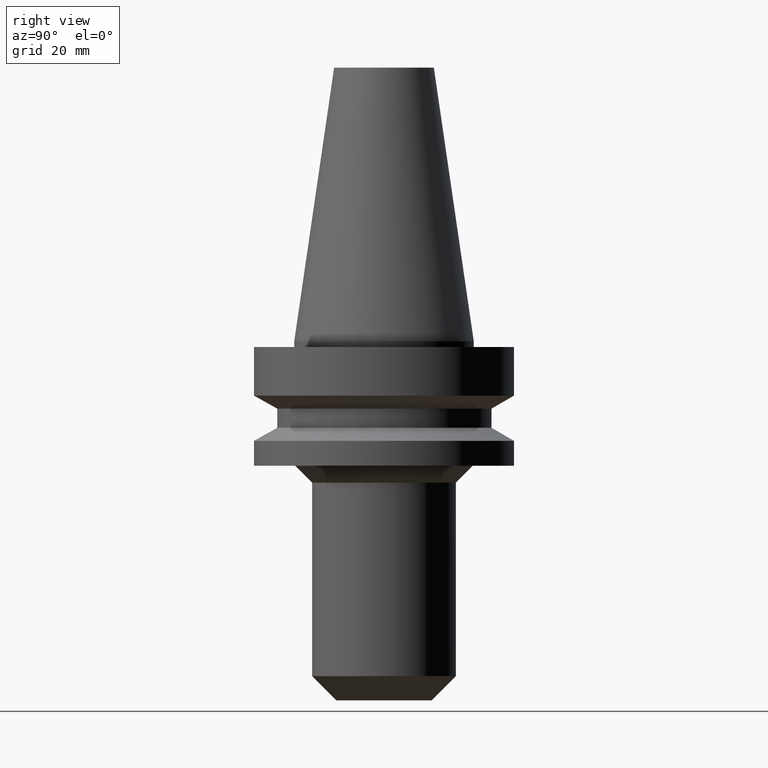
[diagram: clean part render]
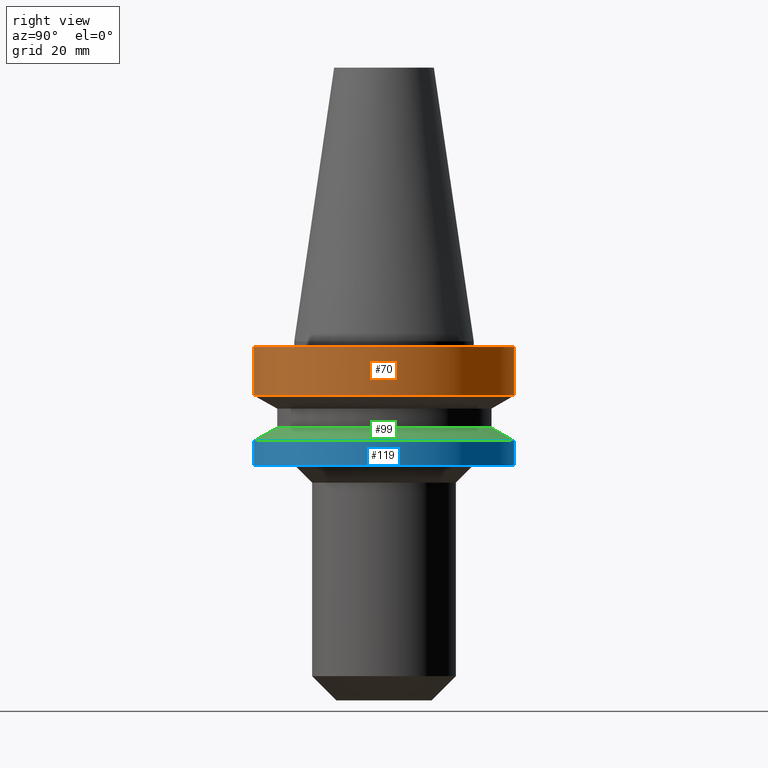
[diagram: same view with three faces highlighted in distinct colors, each labeled with its STEP entity id]
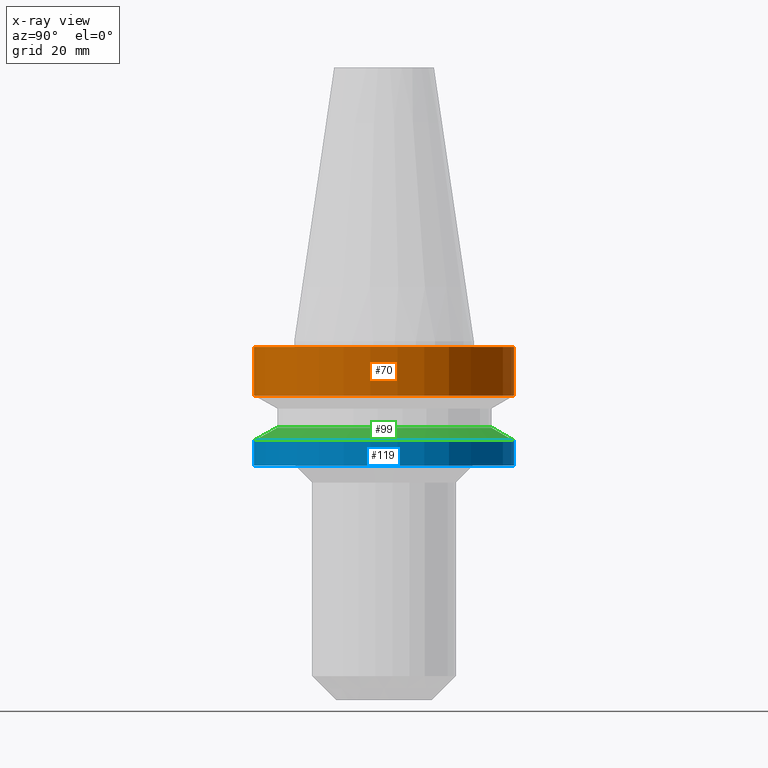
[diagram: x-ray of the same camera — body ghosted, the three highlighted faces saturated]
A machine part, right view with three faces highlighted in distinct colors.
The next image is the same camera in x-ray (body ghosted, the three faces saturated) — at least one of them is partly hidden behind the body in this view.
Their STEP definitions:

[orange] entity #70 — the highlighted cylindrical surface (bore or boss wall) has radius 23 mm, axis along (0, 0, -1).
#63=EDGE_CURVE('Unnamed[1]',#154,#154,#155,.T.);
#70=ADVANCED_FACE('Unnamed[1]',(#164,#165),#166,.T.);
#121=EDGE_CURVE('Unnamed[1]',#246,#246,#247,.T.);
#154=VERTEX_POINT('',#274);
#155=CIRCLE('',#275,23.0);
#164=FACE_BOUND('',#287,.T.);
#165=FACE_BOUND('',#288,.T.);
#166=CYLINDRICAL_SURFACE('',#289,23.0);
#246=VERTEX_POINT('',#389);
#247=CIRCLE('',#390,23.0);
#274=CARTESIAN_POINT('',(5.87830463590729E-016,23.0,-9.59999999999999));
#275=AXIS2_PLACEMENT_3D('',#407,#408,#409);
#287=EDGE_LOOP('',(#417));
#288=EDGE_LOOP('',(#418));
#289=AXIS2_PLACEMENT_3D('',#419,#420,#421);
#389=CARTESIAN_POINT('',(6.12323399573674E-017,23.0,-0.999999999999997));
#390=AXIS2_PLACEMENT_3D('',#511,#512,#513);
#407=CARTESIAN_POINT('',(5.87830463590729E-016,1.17566092718146E-015,-9.59999999999999));
#408=DIRECTION('',(6.12323399573677E-017,1.22464679914735E-016,-1.0));
#409=DIRECTION('',(-1.23259516440783E-032,1.0,1.22464679914735E-016));
#417=ORIENTED_EDGE('',*,*,#63,.F.);
#418=ORIENTED_EDGE('',*,*,#121,.T.);
#419=CARTESIAN_POINT('',(3.24531401774048E-016,6.49062803548097E-016,-5.3));
#420=DIRECTION('',(6.12323399573677E-017,1.22464679914735E-016,-1.0));
#421=DIRECTION('',(-1.23259516440783E-032,1.0,1.22464679914735E-016));
#511=CARTESIAN_POINT('',(6.12323399573677E-017,1.22464679914735E-016,-1.0));
#512=DIRECTION('',(6.12323399573677E-017,1.22464679914735E-016,-1.0));
#513=DIRECTION('',(-1.23259516440783E-032,1.0,1.22464679914735E-016));

[blue] entity #119 — the highlighted cylindrical surface (bore or boss wall) has radius 23 mm, axis along (0, 0, -1).
#77=EDGE_CURVE('Unnamed[1]',#175,#175,#176,.T.);
#113=EDGE_CURVE('Unnamed[1]',#233,#233,#234,.T.);
#119=ADVANCED_FACE('Unnamed[1]',(#242,#243),#244,.T.);
#175=VERTEX_POINT('',#301);
#176=CIRCLE('',#302,23.0);
#233=VERTEX_POINT('',#373);
#234=CIRCLE('',#374,23.0);
#242=FACE_BOUND('',#384,.T.);
#243=FACE_BOUND('',#385,.T.);
#244=CYLINDRICAL_SURFACE('',#386,23.0);
#301=CARTESIAN_POINT('',(1.34711147906209E-015,23.0,-22.0));
#302=AXIS2_PLACEMENT_3D('',#430,#431,#432);
#373=CARTESIAN_POINT('',(1.07768918324967E-015,23.0,-17.6));
#374=AXIS2_PLACEMENT_3D('',#496,#497,#498);
#384=EDGE_LOOP('',(#506));
#385=EDGE_LOOP('',(#507));
#386=AXIS2_PLACEMENT_3D('',#508,#509,#510);
#430=CARTESIAN_POINT('',(1.34711147906209E-015,2.69422295812418E-015,-22.0));
#431=DIRECTION('',(6.12323399573677E-017,1.22464679914735E-016,-1.0));
#432=DIRECTION('',(-1.23259516440783E-032,1.0,1.22464679914735E-016));
#496=CARTESIAN_POINT('',(1.07768918324967E-015,2.15537836649934E-015,-17.6));
#497=DIRECTION('',(6.12323399573677E-017,1.22464679914735E-016,-1.0));
#498=DIRECTION('',(-1.23259516440783E-032,1.0,1.22464679914735E-016));
#506=ORIENTED_EDGE('',*,*,#77,.F.);
#507=ORIENTED_EDGE('',*,*,#113,.T.);
#508=CARTESIAN_POINT('',(1.21240033115588E-015,2.42480066231176E-015,-19.8));
#509=DIRECTION('',(6.12323399573677E-017,1.22464679914735E-016,-1.0));
#510=DIRECTION('',(-1.23259516440783E-032,1.0,1.22464679914735E-016));

[green] entity #99 — the highlighted conical surface has half-angle 60 deg.
#72=EDGE_CURVE('Unnamed[1]',#168,#168,#169,.T.);
#99=ADVANCED_FACE('Unnamed[1]',(#209,#210),#211,.T.);
#113=EDGE_CURVE('Unnamed[1]',#233,#233,#234,.T.);
#168=VERTEX_POINT('',#292);
#169=CIRCLE('',#293,19.0);
#209=FACE_BOUND('',#344,.T.);
#210=FACE_BOUND('',#345,.T.);
#211=CONICAL_SURFACE('',#346,21.0,1.04719755058882);
#233=VERTEX_POINT('',#373);
#234=CIRCLE('',#374,23.0);
#292=CARTESIAN_POINT('',(9.36279151221199E-016,19.0,-15.29059892));
#293=AXIS2_PLACEMENT_3D('',#422,#423,#424);
#344=EDGE_LOOP('',(#467));
#345=EDGE_LOOP('',(#468));
#346=AXIS2_PLACEMENT_3D('',#469,#470,#471);
#373=CARTESIAN_POINT('',(1.07768918324967E-015,23.0,-17.6));
#374=AXIS2_PLACEMENT_3D('',#496,#497,#498);
#422=CARTESIAN_POINT('',(9.36279151221199E-016,1.8725583024424E-015,-15.29059892));
#423=DIRECTION('',(6.12323399573677E-017,1.22464679914735E-016,-1.0));
#424=DIRECTION('',(-1.23259516440783E-032,1.0,1.22464679914735E-016));
#467=ORIENTED_EDGE('',*,*,#113,.F.);
#468=ORIENTED_EDGE('',*,*,#72,.T.);
#469=CARTESIAN_POINT('',(1.00698416723543E-015,2.01396833447087E-015,-16.44529946));
#470=DIRECTION('',(6.12323399573677E-017,1.22464679914735E-016,-1.0));
#471=DIRECTION('',(-1.23259516440783E-032,1.0,1.22464679914735E-016));
#496=CARTESIAN_POINT('',(1.07768918324967E-015,2.15537836649934E-015,-17.6));
#497=DIRECTION('',(6.12323399573677E-017,1.22464679914735E-016,-1.0));
#498=DIRECTION('',(-1.23259516440783E-032,1.0,1.22464679914735E-016));